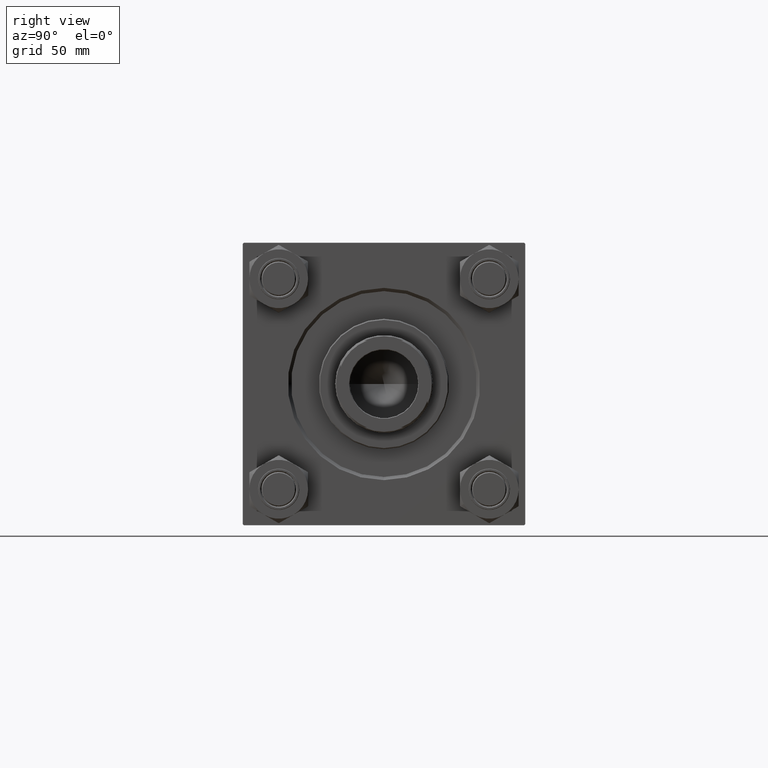
[diagram: clean part render]
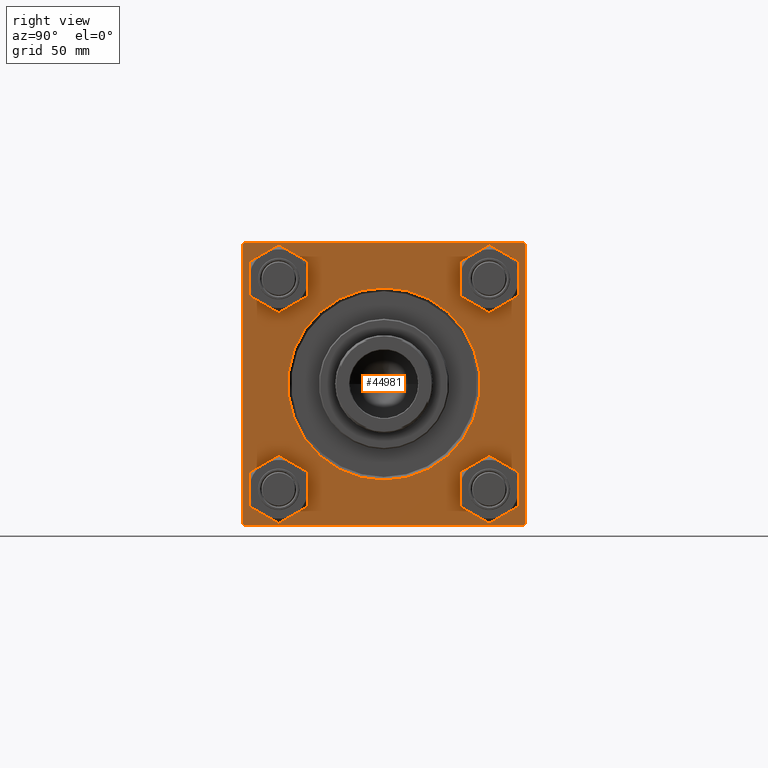
[diagram: same view with one face highlighted and labeled with its STEP entity id]
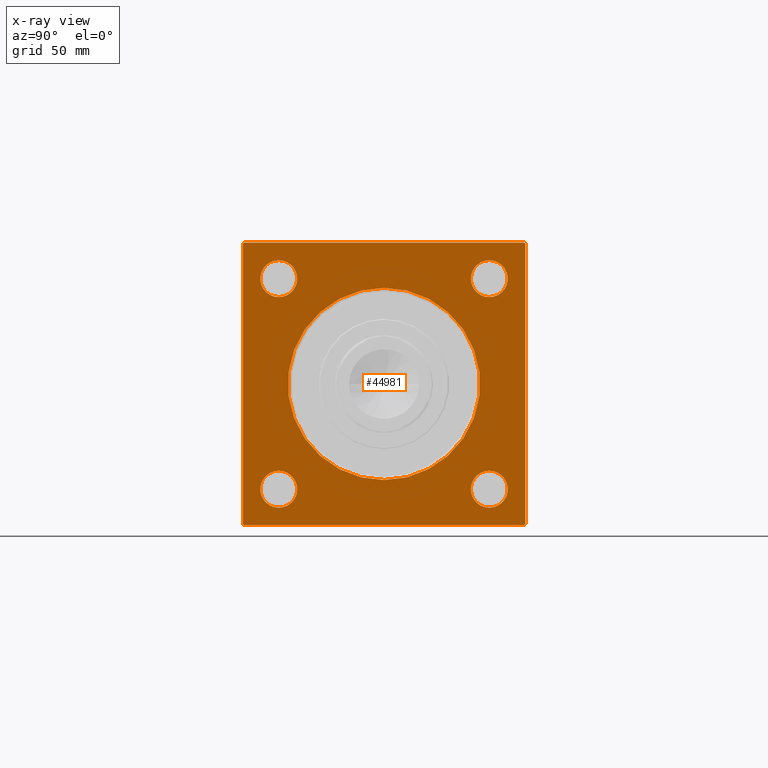
[diagram: x-ray of the same camera — body ghosted, the highlighted face saturated]
A machine part, right view. The second image highlights one B-rep face of the part: STEP entity #44981.
The next image is the same camera in x-ray: the body ghosted, the highlighted face saturated — about 0% of this face is hidden behind the body in this view.
In plain terms, the highlighted planar face has unit normal (-1, 0, 0).
Its self-contained STEP definition (entity closure, byte-faithful):
#494 = CARTESIAN_POINT ( 'NONE',  ( 188.0000000000000000, 48.45000000000000995, 48.45000000000001705 ) ) ;
#552 = CARTESIAN_POINT ( 'NONE',  ( 188.0000000000000000, -48.44999999999999574, 56.94999999999995310 ) ) ;
#969 = CARTESIAN_POINT ( 'NONE',  ( 188.0000000000000000, 48.45000000000000995, 56.94999999999993889 ) ) ;
#1419 = DIRECTION ( 'NONE',  ( -0.000000000000000000, 0.7071067811865671127, 0.7071067811865279218 ) ) ;
#1431 = EDGE_CURVE ( 'NONE', #43215, #29666, #36453, .T. ) ;
#1503 = CARTESIAN_POINT ( 'NONE',  ( 188.0000000000000000, -48.44999999999999574, -48.45000000000003126 ) ) ;
#1734 = VERTEX_POINT ( 'NONE', #552 ) ;
#1769 = CARTESIAN_POINT ( 'NONE',  ( 188.0000000000000000, 48.45000000000000995, -56.94999999999993889 ) ) ;
#2039 = CARTESIAN_POINT ( 'NONE',  ( 188.0000000000000000, 64.50000000000005684, 65.00000000000001421 ) ) ;
#2935 = VERTEX_POINT ( 'NONE', #7811 ) ;
#3099 = DIRECTION ( 'NONE',  ( 0.000000000000000000, 0.000000000000000000, 1.000000000000000000 ) ) ;
#3110 = DIRECTION ( 'NONE',  ( -1.000000000000000000, 0.000000000000000000, -0.000000000000000000 ) ) ;
#3121 = CARTESIAN_POINT ( 'NONE',  ( 188.0000000000000000, 0.000000000000000000, 0.000000000000000000 ) ) ;
#3447 = EDGE_LOOP ( 'NONE', ( #5800, #23099 ) ) ;
#4536 = CARTESIAN_POINT ( 'NONE',  ( 188.0000000000000000, -64.50000000000002842, -65.00000000000001421 ) ) ;
#5058 = ORIENTED_EDGE ( 'NONE', *, *, #16548, .T. ) ;
#5800 = ORIENTED_EDGE ( 'NONE', *, *, #27874, .T. ) ;
#5990 = EDGE_LOOP ( 'NONE', ( #40360, #39610 ) ) ;
#6823 = DIRECTION ( 'NONE',  ( 0.000000000000000000, 0.000000000000000000, 1.000000000000000000 ) ) ;
#6953 = DIRECTION ( 'NONE',  ( 0.000000000000000000, 0.000000000000000000, 1.000000000000000000 ) ) ;
#6982 = CARTESIAN_POINT ( 'NONE',  ( 188.0000000000000000, -48.44999999999999574, 39.95000000000010232 ) ) ;
#7616 = CARTESIAN_POINT ( 'NONE',  ( 188.0000000000000000, 65.00000000000002842, -64.50000000000001421 ) ) ;
#7811 = CARTESIAN_POINT ( 'NONE',  ( 188.0000000000000000, 64.50000000000005684, 65.00000000000001421 ) ) ;
#8107 = DIRECTION ( 'NONE',  ( -1.000000000000000000, 0.000000000000000000, -0.000000000000000000 ) ) ;
#8841 = DIRECTION ( 'NONE',  ( -1.000000000000000000, 0.000000000000000000, -0.000000000000000000 ) ) ;
#8852 = CARTESIAN_POINT ( 'NONE',  ( 188.0000000000000000, -64.50000000000008527, 65.00000000000000000 ) ) ;
#8871 = DIRECTION ( 'NONE',  ( -1.000000000000000000, 0.000000000000000000, -0.000000000000000000 ) ) ;
#9161 = VERTEX_POINT ( 'NONE', #14486 ) ;
#10058 = LINE ( 'NONE', #18178, #26312 ) ;
#10416 = ORIENTED_EDGE ( 'NONE', *, *, #42466, .F. ) ;
#10468 = DIRECTION ( 'NONE',  ( -1.000000000000000000, 0.000000000000000000, -0.000000000000000000 ) ) ;
#10624 = FACE_BOUND ( 'NONE', #38244, .T. ) ;
#10733 = CIRCLE ( 'NONE', #15608, 8.499999999999923617 ) ;
#11351 = LINE ( 'NONE', #2039, #40042 ) ;
#11605 = DIRECTION ( 'NONE',  ( 0.000000000000000000, -1.000000000000000000, -1.067522139062650425E-16 ) ) ;
#12331 = EDGE_CURVE ( 'NONE', #49168, #13938, #17386, .T. ) ;
#12409 = DIRECTION ( 'NONE',  ( 0.000000000000000000, 0.000000000000000000, 1.000000000000000000 ) ) ;
#13045 = DIRECTION ( 'NONE',  ( 0.000000000000000000, 0.000000000000000000, -1.000000000000000000 ) ) ;
#13442 = CARTESIAN_POINT ( 'NONE',  ( 188.0000000000000000, 64.50000000000002842, -64.99999999999998579 ) ) ;
#13938 = VERTEX_POINT ( 'NONE', #40372 ) ;
#14018 = VERTEX_POINT ( 'NONE', #1769 ) ;
#14040 = ORIENTED_EDGE ( 'NONE', *, *, #30695, .T. ) ;
#14486 = CARTESIAN_POINT ( 'NONE',  ( 188.0000000000000000, 48.45000000000000995, -39.95000000000008811 ) ) ;
#14586 = CIRCLE ( 'NONE', #25084, 8.499999999999923617 ) ;
#14686 = FACE_BOUND ( 'NONE', #3447, .T. ) ;
#15060 = EDGE_CURVE ( 'NONE', #24554, #2935, #11351, .T. ) ;
#15405 = VECTOR ( 'NONE', #25017, 1000.000000000000000 ) ;
#15608 = AXIS2_PLACEMENT_3D ( 'NONE', #41454, #10468, #3099 ) ;
#15630 = EDGE_CURVE ( 'NONE', #42154, #16755, #45759, .T. ) ;
#15957 = ORIENTED_EDGE ( 'NONE', *, *, #15060, .T. ) ;
#15967 = VECTOR ( 'NONE', #29004, 999.9999999999998863 ) ;
#16548 = EDGE_CURVE ( 'NONE', #32738, #31923, #23904, .T. ) ;
#16755 = VERTEX_POINT ( 'NONE', #16815 ) ;
#16815 = CARTESIAN_POINT ( 'NONE',  ( 188.0000000000000000, -48.44999999999999574, -56.94999999999995310 ) ) ;
#16903 = DIRECTION ( 'NONE',  ( 0.000000000000000000, 0.000000000000000000, 1.000000000000000000 ) ) ;
#17378 = DIRECTION ( 'NONE',  ( -1.000000000000000000, 0.000000000000000000, -0.000000000000000000 ) ) ;
#17386 = CIRCLE ( 'NONE', #32009, 8.499999999999923617 ) ;
#17535 = DIRECTION ( 'NONE',  ( 0.000000000000000000, -0.7071067811865279218, 0.7071067811865671127 ) ) ;
#17738 = FACE_BOUND ( 'NONE', #36581, .T. ) ;
#18178 = CARTESIAN_POINT ( 'NONE',  ( 188.0000000000000000, 65.00000000000002842, 65.00000000000001421 ) ) ;
#18961 = AXIS2_PLACEMENT_3D ( 'NONE', #22713, #45829, #33910 ) ;
#19851 = AXIS2_PLACEMENT_3D ( 'NONE', #3121, #37413, #34112 ) ;
#19896 = EDGE_CURVE ( 'NONE', #13938, #49168, #21576, .T. ) ;
#20102 = ORIENTED_EDGE ( 'NONE', *, *, #12331, .T. ) ;
#20421 = CIRCLE ( 'NONE', #48788, 8.499999999999923617 ) ;
#20851 = ORIENTED_EDGE ( 'NONE', *, *, #48857, .T. ) ;
#21576 = CIRCLE ( 'NONE', #33770, 8.499999999999923617 ) ;
#21799 = DIRECTION ( 'NONE',  ( -1.000000000000000000, 0.000000000000000000, -0.000000000000000000 ) ) ;
#22049 = FACE_BOUND ( 'NONE', #46523, .T. ) ;
#22210 = CARTESIAN_POINT ( 'NONE',  ( 188.0000000000000000, -64.99999999999998579, -64.50000000000002842 ) ) ;
#22406 = CARTESIAN_POINT ( 'NONE',  ( 188.0000000000000000, -48.44999999999999574, -48.45000000000003126 ) ) ;
#22713 = CARTESIAN_POINT ( 'NONE',  ( 188.0000000000000000, -48.44999999999999574, 48.45000000000003126 ) ) ;
#23099 = ORIENTED_EDGE ( 'NONE', *, *, #32270, .T. ) ;
#23618 = VERTEX_POINT ( 'NONE', #8852 ) ;
#23904 = CIRCLE ( 'NONE', #19851, 44.24999999999998579 ) ;
#24327 = CIRCLE ( 'NONE', #25117, 8.499999999999923617 ) ;
#24334 = DIRECTION ( 'NONE',  ( 0.000000000000000000, 0.000000000000000000, 1.000000000000000000 ) ) ;
#24425 = ORIENTED_EDGE ( 'NONE', *, *, #19896, .T. ) ;
#24554 = VERTEX_POINT ( 'NONE', #34358 ) ;
#24807 = VERTEX_POINT ( 'NONE', #7616 ) ;
#25017 = DIRECTION ( 'NONE',  ( 0.000000000000000000, -1.000000000000000000, -2.135044278125300850E-16 ) ) ;
#25084 = AXIS2_PLACEMENT_3D ( 'NONE', #1503, #8871, #36293 ) ;
#25117 = AXIS2_PLACEMENT_3D ( 'NONE', #29167, #45410, #6823 ) ;
#25263 = CARTESIAN_POINT ( 'NONE',  ( 188.0000000000000000, 65.00000000000002842, -64.50000000000001421 ) ) ;
#25489 = AXIS2_PLACEMENT_3D ( 'NONE', #22406, #3110, #30023 ) ;
#26312 = VECTOR ( 'NONE', #41038, 1000.000000000000000 ) ;
#26616 = DIRECTION ( 'NONE',  ( -0.000000000000000000, 0.000000000000000000, 1.000000000000000000 ) ) ;
#26895 = EDGE_CURVE ( 'NONE', #16755, #42154, #14586, .T. ) ;
#27848 = ORIENTED_EDGE ( 'NONE', *, *, #26895, .T. ) ;
#27874 = EDGE_CURVE ( 'NONE', #14018, #9161, #24327, .T. ) ;
#28506 = LINE ( 'NONE', #32582, #15967 ) ;
#28528 = CARTESIAN_POINT ( 'NONE',  ( 188.0000000000000000, -64.99999999999998579, 65.00000000000000000 ) ) ;
#28795 = ORIENTED_EDGE ( 'NONE', *, *, #29594, .T. ) ;
#28885 = VECTOR ( 'NONE', #35525, 1000.000000000000000 ) ;
#29004 = DIRECTION ( 'NONE',  ( -0.000000000000000000, -0.7071067811865376918, -0.7071067811865574537 ) ) ;
#29064 = DIRECTION ( 'NONE',  ( -1.000000000000000000, 0.000000000000000000, -0.000000000000000000 ) ) ;
#29167 = CARTESIAN_POINT ( 'NONE',  ( 188.0000000000000000, 48.45000000000000995, -48.45000000000001705 ) ) ;
#29250 = CIRCLE ( 'NONE', #42246, 44.24999999999998579 ) ;
#29594 = EDGE_CURVE ( 'NONE', #31923, #32738, #29250, .T. ) ;
#29666 = VERTEX_POINT ( 'NONE', #40077 ) ;
#30023 = DIRECTION ( 'NONE',  ( 0.000000000000000000, 0.000000000000000000, 1.000000000000000000 ) ) ;
#30173 = FACE_BOUND ( 'NONE', #5990, .T. ) ;
#30695 = EDGE_CURVE ( 'NONE', #43215, #24807, #36214, .T. ) ;
#30912 = CARTESIAN_POINT ( 'NONE',  ( 188.0000000000000000, 65.00000000000002842, 65.00000000000001421 ) ) ;
#31923 = VERTEX_POINT ( 'NONE', #44123 ) ;
#32009 = AXIS2_PLACEMENT_3D ( 'NONE', #44542, #17378, #6953 ) ;
#32270 = EDGE_CURVE ( 'NONE', #9161, #14018, #20421, .T. ) ;
#32582 = CARTESIAN_POINT ( 'NONE',  ( 188.0000000000000000, -64.99999999999998579, 64.50000000000008527 ) ) ;
#32738 = VERTEX_POINT ( 'NONE', #38648 ) ;
#32903 = CARTESIAN_POINT ( 'NONE',  ( 188.0000000000000000, 65.00000000000002842, -64.99999999999998579 ) ) ;
#33135 = CARTESIAN_POINT ( 'NONE',  ( 188.0000000000000000, 48.45000000000000995, -48.45000000000001705 ) ) ;
#33291 = ORIENTED_EDGE ( 'NONE', *, *, #47114, .T. ) ;
#33490 = EDGE_CURVE ( 'NONE', #42283, #1734, #10733, .T. ) ;
#33770 = AXIS2_PLACEMENT_3D ( 'NONE', #494, #8107, #24334 ) ;
#33910 = DIRECTION ( 'NONE',  ( 0.000000000000000000, 0.000000000000000000, 1.000000000000000000 ) ) ;
#34112 = DIRECTION ( 'NONE',  ( 0.000000000000000000, 0.000000000000000000, 1.000000000000000000 ) ) ;
#34358 = CARTESIAN_POINT ( 'NONE',  ( 188.0000000000000000, 65.00000000000002842, 64.50000000000001421 ) ) ;
#35155 = VECTOR ( 'NONE', #11605, 1000.000000000000000 ) ;
#35285 = EDGE_CURVE ( 'NONE', #2935, #23618, #46139, .T. ) ;
#35525 = DIRECTION ( 'NONE',  ( 0.000000000000000000, 0.7071067811865279218, -0.7071067811865672237 ) ) ;
#36214 = LINE ( 'NONE', #25263, #41483 ) ;
#36293 = DIRECTION ( 'NONE',  ( 0.000000000000000000, 0.000000000000000000, 1.000000000000000000 ) ) ;
#36453 = LINE ( 'NONE', #32903, #15405 ) ;
#36581 = EDGE_LOOP ( 'NONE', ( #27848, #43833 ) ) ;
#37413 = DIRECTION ( 'NONE',  ( -1.000000000000000000, 0.000000000000000000, -0.000000000000000000 ) ) ;
#37546 = FACE_OUTER_BOUND ( 'NONE', #45583, .T. ) ;
#38244 = EDGE_LOOP ( 'NONE', ( #24425, #20102 ) ) ;
#38648 = CARTESIAN_POINT ( 'NONE',  ( 188.0000000000000000, 5.419062086227035828E-15, 44.24999999999998579 ) ) ;
#39336 = LINE ( 'NONE', #4536, #28885 ) ;
#39560 = EDGE_CURVE ( 'NONE', #1734, #42283, #48139, .T. ) ;
#39597 = VERTEX_POINT ( 'NONE', #22210 ) ;
#39610 = ORIENTED_EDGE ( 'NONE', *, *, #39560, .T. ) ;
#39962 = LINE ( 'NONE', #28528, #45705 ) ;
#40042 = VECTOR ( 'NONE', #17535, 1000.000000000000000 ) ;
#40077 = CARTESIAN_POINT ( 'NONE',  ( 188.0000000000000000, -64.50000000000002842, -65.00000000000001421 ) ) ;
#40228 = VERTEX_POINT ( 'NONE', #42592 ) ;
#40360 = ORIENTED_EDGE ( 'NONE', *, *, #33490, .T. ) ;
#40372 = CARTESIAN_POINT ( 'NONE',  ( 188.0000000000000000, 48.45000000000000995, 39.95000000000008811 ) ) ;
#40591 = EDGE_CURVE ( 'NONE', #40228, #39597, #39962, .T. ) ;
#41038 = DIRECTION ( 'NONE',  ( 0.000000000000000000, 0.000000000000000000, -1.000000000000000000 ) ) ;
#41354 = CARTESIAN_POINT ( 'NONE',  ( 188.0000000000000000, 0.000000000000000000, 0.000000000000000000 ) ) ;
#41454 = CARTESIAN_POINT ( 'NONE',  ( 188.0000000000000000, -48.44999999999999574, 48.45000000000003126 ) ) ;
#41483 = VECTOR ( 'NONE', #1419, 1000.000000000000000 ) ;
#41771 = CARTESIAN_POINT ( 'NONE',  ( 188.0000000000000000, -48.44999999999999574, -39.95000000000010232 ) ) ;
#42154 = VERTEX_POINT ( 'NONE', #41771 ) ;
#42246 = AXIS2_PLACEMENT_3D ( 'NONE', #47197, #8841, #12409 ) ;
#42283 = VERTEX_POINT ( 'NONE', #6982 ) ;
#42466 = EDGE_CURVE ( 'NONE', #24554, #24807, #10058, .T. ) ;
#42592 = CARTESIAN_POINT ( 'NONE',  ( 188.0000000000000000, -64.99999999999998579, 64.50000000000008527 ) ) ;
#43215 = VERTEX_POINT ( 'NONE', #13442 ) ;
#43545 = ORIENTED_EDGE ( 'NONE', *, *, #35285, .T. ) ;
#43833 = ORIENTED_EDGE ( 'NONE', *, *, #15630, .T. ) ;
#44109 = ORIENTED_EDGE ( 'NONE', *, *, #1431, .F. ) ;
#44123 = CARTESIAN_POINT ( 'NONE',  ( 188.0000000000000000, 0.000000000000000000, -44.24999999999998579 ) ) ;
#44229 = AXIS2_PLACEMENT_3D ( 'NONE', #41354, #21799, #26616 ) ;
#44542 = CARTESIAN_POINT ( 'NONE',  ( 188.0000000000000000, 48.45000000000000995, 48.45000000000001705 ) ) ;
#44981 = ADVANCED_FACE ( 'NONE', ( #17738, #14686, #10624, #30173, #22049, #37546 ), #45659, .F. ) ;
#45410 = DIRECTION ( 'NONE',  ( -1.000000000000000000, 0.000000000000000000, -0.000000000000000000 ) ) ;
#45583 = EDGE_LOOP ( 'NONE', ( #47274, #33291, #44109, #14040, #10416, #15957, #43545, #20851 ) ) ;
#45659 = PLANE ( 'NONE',  #44229 ) ;
#45705 = VECTOR ( 'NONE', #13045, 1000.000000000000000 ) ;
#45759 = CIRCLE ( 'NONE', #25489, 8.499999999999923617 ) ;
#45829 = DIRECTION ( 'NONE',  ( -1.000000000000000000, 0.000000000000000000, -0.000000000000000000 ) ) ;
#46139 = LINE ( 'NONE', #30912, #35155 ) ;
#46523 = EDGE_LOOP ( 'NONE', ( #28795, #5058 ) ) ;
#47114 = EDGE_CURVE ( 'NONE', #39597, #29666, #39336, .T. ) ;
#47197 = CARTESIAN_POINT ( 'NONE',  ( 188.0000000000000000, 0.000000000000000000, 0.000000000000000000 ) ) ;
#47274 = ORIENTED_EDGE ( 'NONE', *, *, #40591, .T. ) ;
#48139 = CIRCLE ( 'NONE', #18961, 8.499999999999923617 ) ;
#48788 = AXIS2_PLACEMENT_3D ( 'NONE', #33135, #29064, #16903 ) ;
#48857 = EDGE_CURVE ( 'NONE', #23618, #40228, #28506, .T. ) ;
#49168 = VERTEX_POINT ( 'NONE', #969 ) ;